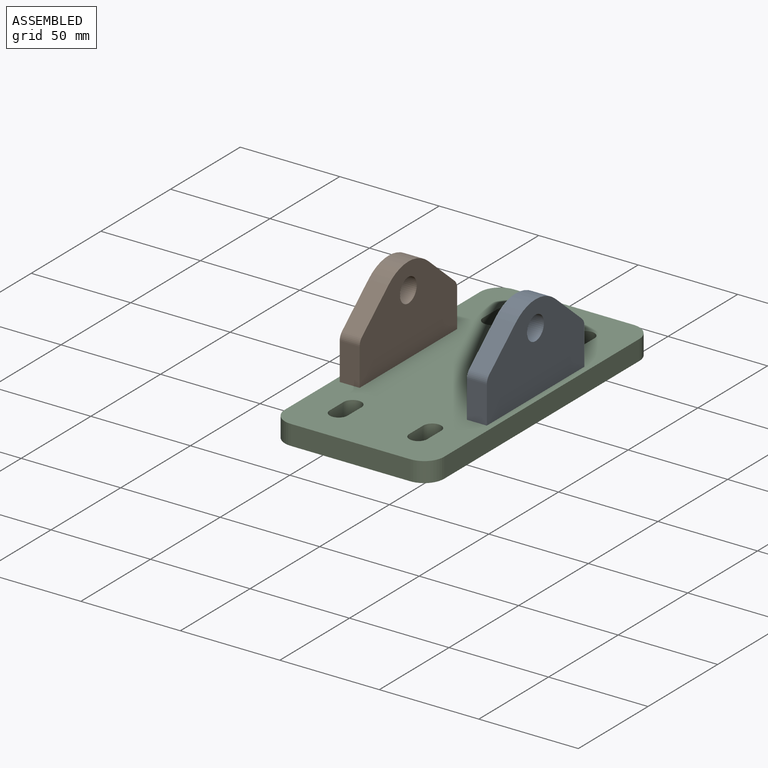
[diagram: assembled view]
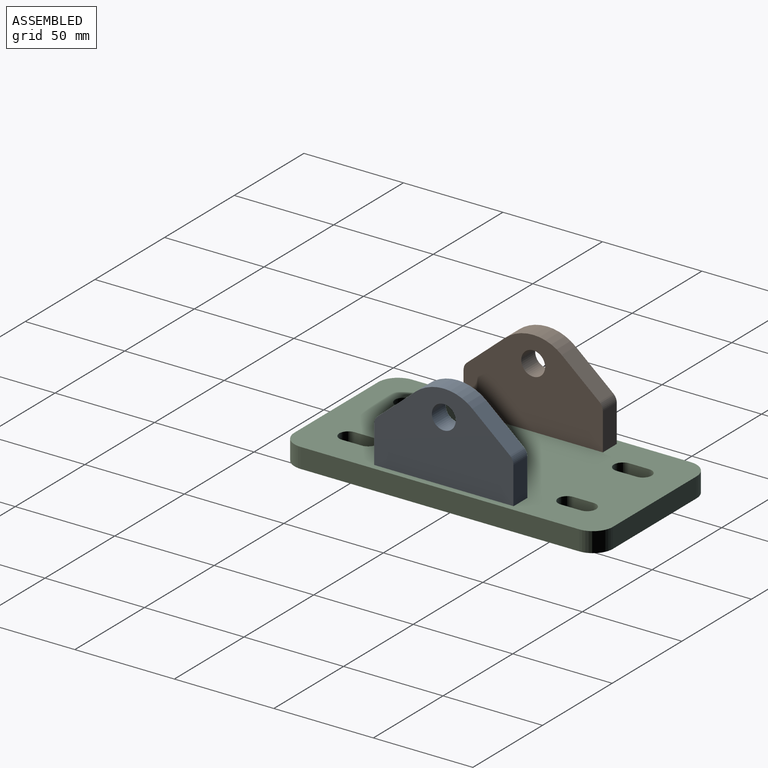
[diagram: assembled view, second angle]
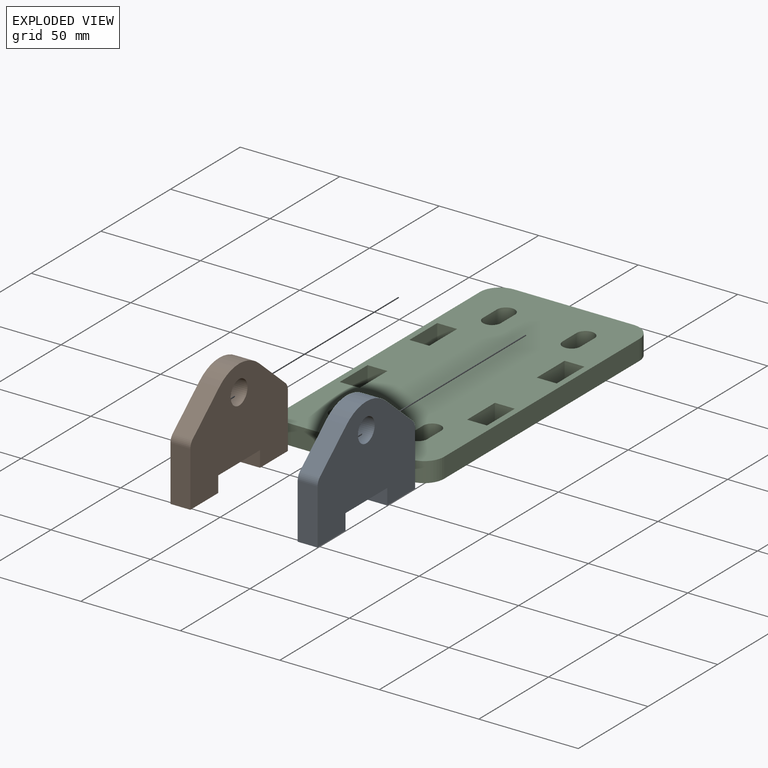
[diagram: exploded view]
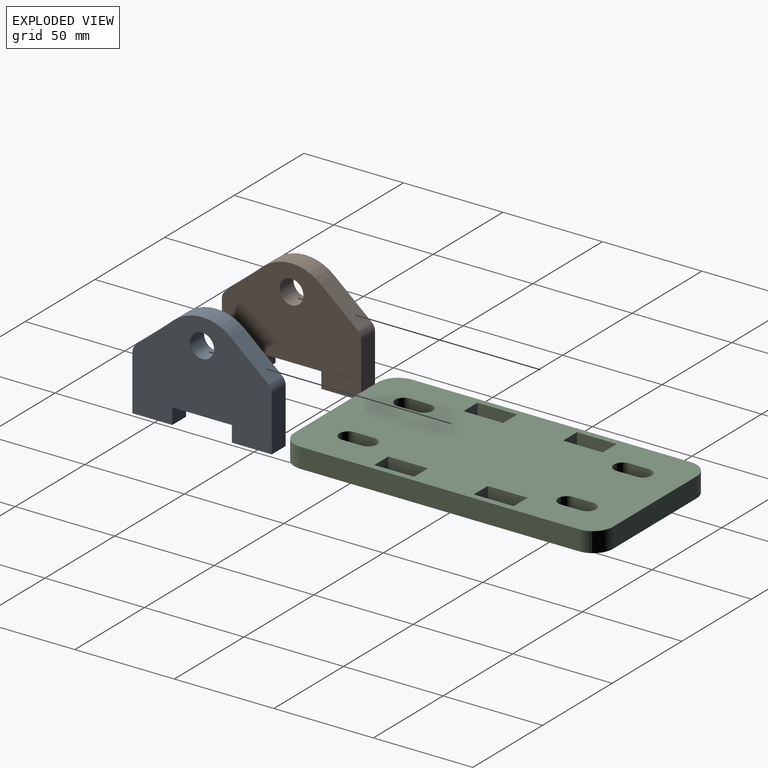
[diagram: exploded view, second angle]
ASSEMBLY  parts=3 mates=2
PART A: 15 faces, bbox 70x53x10 mm
  f0: plane 27.7x10mm, normal (-1,0,0), area 277mm2, adj f8,f10,f11,f13
  f1: plane 18.94x16.23mm, normal (-0.65,0.76,0), area 249.4mm2, adj f10,f11,f12,f13
  f2: plane 18.94x16.23mm, normal (0.65,0.76,0), area 249.4mm2, adj f10,f11,f12,f14
  f3: plane 27.7x10mm, normal (1,0,0), area 277mm2, adj f4,f10,f11,f14
  f4: plane 20x10mm, normal (0,-1,0), area 200mm2, adj f3,f5,f10,f11
  f5: plane 10x8mm, normal (-1,0,0), area 80mm2, adj f4,f6,f10,f11
  f6: plane 30x10mm, normal (0,-1,0), area 300mm2, adj f5,f7,f10,f11
  f7: plane 10x8mm, normal (1,0,0), area 80mm2, adj f6,f8,f10,f11
  f8: plane 20x10mm, normal (0,-1,0), area 200mm2, adj f0,f7,f10,f11
  f9: cylinder r=6mm len=12mm, axis (0,0,1), area 377mm2, adj f10,f11
  f10: plane 70x53.02mm, normal (0,0,-1), area 2723.6mm2, adj f0,f1,f2,f3,f4,f5,f6,f7
  f11: plane 70x53.02mm, normal (0,0,1), area 2723.6mm2, adj f0,f1,f2,f3,f4,f5,f6,f7
  f12: cylinder r=22mm len=28.64mm, axis (0,0,-1), area 311.8mm2, adj f1,f2,f10,f11
  f13: cylinder r=5mm len=10mm, axis (0,0,-1), area 43.1mm2, adj f0,f1,f10,f11
  f14: cylinder r=5mm len=10mm, axis (0,0,-1), area 43.1mm2, adj f2,f3,f10,f11
PART B: same geometry as A
PART C: 42 faces, bbox 80x160x10 mm
  f0: plane 10x10mm, normal (0,1,0), area 100mm2, adj f1,f35,f36,f37
  f1: plane 20x10mm, normal (-1,0,0), area 200mm2, adj f0,f2,f36,f37
  f2: plane 10x10mm, normal (0,-1,0), area 100mm2, adj f1,f35,f36,f37
  f3: plane 10x10mm, normal (0,1,0), area 100mm2, adj f4,f34,f36,f37
  f4: plane 20x10mm, normal (-1,0,0), area 200mm2, adj f3,f5,f36,f37
  f5: plane 10x10mm, normal (0,-1,0), area 100mm2, adj f4,f34,f36,f37
  f6: plane 10.06x10mm, normal (1,0,0), area 100.6mm2, adj f7,f33,f36,f37
  f7: cylinder r=4.5mm len=10mm, axis (0,0,1), area 141.4mm2, adj f6,f8,f36,f37
  f8: plane 10.05x10mm, normal (-1,0,0), area 100.5mm2, adj f7,f33,f36,f37
  f9: plane 10.06x10mm, normal (1,0,0), area 100.6mm2, adj f10,f32,f36,f37
  f10: cylinder r=4.5mm len=10mm, axis (0,0,1), area 141.4mm2, adj f9,f11,f36,f37
  f11: plane 10.05x10mm, normal (-1,0,0), area 100.5mm2, adj f10,f32,f36,f37
  f12: plane 60x10mm, normal (0,-1,0), area 600mm2, adj f36,f37,f40,f41
  f13: plane 140x10mm, normal (-1,0,0), area 1400mm2, adj f36,f37,f39,f40
  f14: plane 60x10mm, normal (0,1,0), area 600mm2, adj f36,f37,f38,f39
  f15: plane 10x9.95mm, normal (1,0,0), area 99.5mm2, adj f16,f30,f36,f37
  f16: cylinder r=4.5mm len=10mm, axis (0,0,1), area 141.4mm2, adj f15,f17,f36,f37
  f17: plane 10x9.95mm, normal (-1,0,0), area 99.5mm2, adj f16,f30,f36,f37
  f18: plane 10.06x10mm, normal (1,0,0), area 100.6mm2, adj f19,f29,f36,f37
  f19: cylinder r=4.5mm len=10mm, axis (0,0,1), area 141.4mm2, adj f18,f20,f36,f37
  f20: plane 10.05x10mm, normal (-1,0,0), area 100.5mm2, adj f19,f29,f36,f37
  f21: plane 10x10mm, normal (0,1,0), area 100mm2, adj f22,f28,f36,f37
  f22: plane 20x10mm, normal (-1,0,0), area 200mm2, adj f21,f23,f36,f37
  f23: plane 10x10mm, normal (0,-1,0), area 100mm2, adj f22,f28,f36,f37
  f24: plane 10x10mm, normal (0,1,0), area 100mm2, adj f25,f27,f36,f37
  f25: plane 20x10mm, normal (-1,0,0), area 200mm2, adj f24,f26,f36,f37
  f26: plane 10x10mm, normal (0,-1,0), area 100mm2, adj f25,f27,f36,f37
  f27: plane 20x10mm, normal (1,0,0), area 200mm2, adj f24,f26,f36,f37
  f28: plane 20x10mm, normal (1,0,0), area 200mm2, adj f21,f23,f36,f37
  f29: cylinder r=4.5mm len=10mm, axis (0,0,1), area 140.3mm2, adj f18,f20,f36,f37
  f30: cylinder r=4.5mm len=10mm, axis (0,0,1), area 142.4mm2, adj f15,f17,f36,f37
  f31: plane 140x10mm, normal (1,0,0), area 1400mm2, adj f36,f37,f38,f41
  f32: cylinder r=4.5mm len=10mm, axis (0,0,1), area 140.3mm2, adj f9,f11,f36,f37
  f33: cylinder r=4.5mm len=10mm, axis (0,0,1), area 140.3mm2, adj f6,f8,f36,f37
  f34: plane 20x10mm, normal (1,0,0), area 200mm2, adj f3,f5,f36,f37
  f35: plane 20x10mm, normal (1,0,0), area 200mm2, adj f0,f2,f36,f37
  f36: plane 160x80mm, normal (0,0,-1), area 11299.7mm2, adj f0,f1,f2,f3,f4,f5,f6,f7
  f37: plane 160x80mm, normal (0,0,1), area 11299.7mm2, adj f0,f1,f2,f3,f4,f5,f6,f7
  f38: cylinder r=10mm len=10mm, axis (0,0,-1), area 157.1mm2, adj f14,f31,f36,f37
  f39: cylinder r=10mm len=10mm, axis (0,0,1), area 157.1mm2, adj f13,f14,f36,f37
  f40: cylinder r=10mm len=10mm, axis (0,0,-1), area 157.1mm2, adj f12,f13,f36,f37
  f41: cylinder r=10mm len=10mm, axis (0,0,1), area 157.1mm2, adj f12,f31,f36,f37
PLACE A rot(axis=(0.58,0.58,0.58),120deg) t=(44.51,-66.47,-9.28)mm
PLACE B rot(axis=(0.58,0.58,0.58),120deg) t=(-19.49,-66.36,-9.28)mm
PLACE C t=(26.56,-133.26,-10.28)mm
MATE slider C.f26 <-> B.f7  axis (0,-1,0) through (-14.49,-116.37,-5.28)mm
MATE slider C.f0 <-> A.f5  axis (0,1,0) through (49.51,-86.37,-5.28)mm
